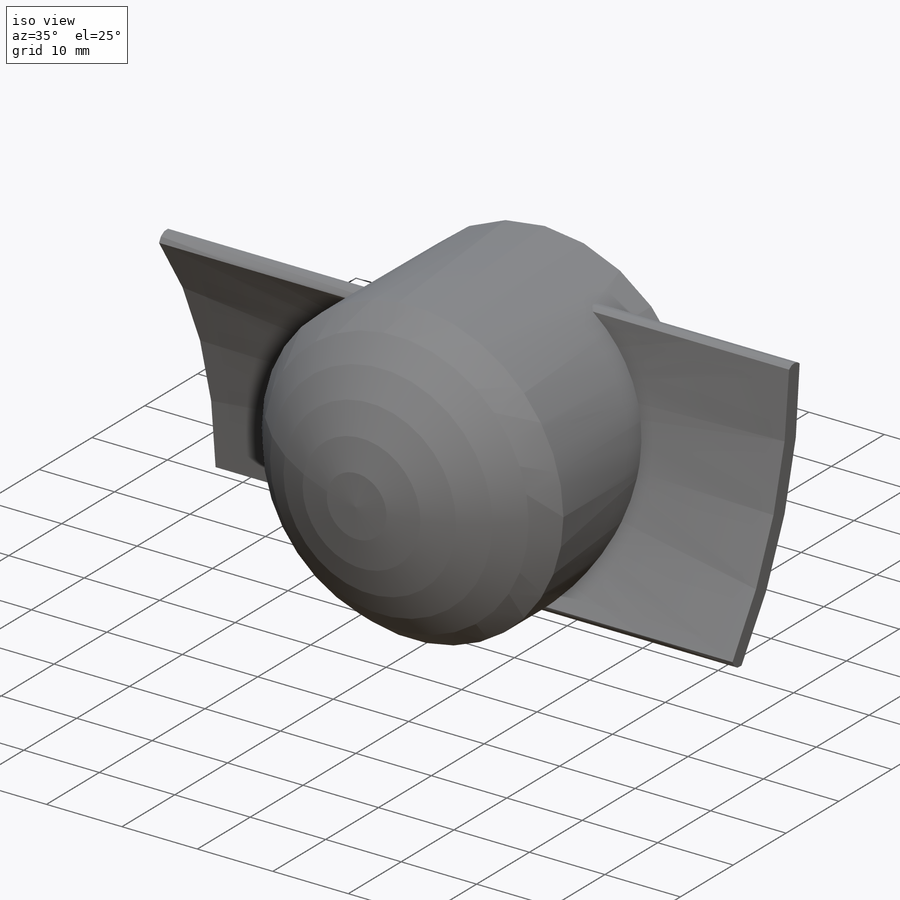
[diagram: iso view]
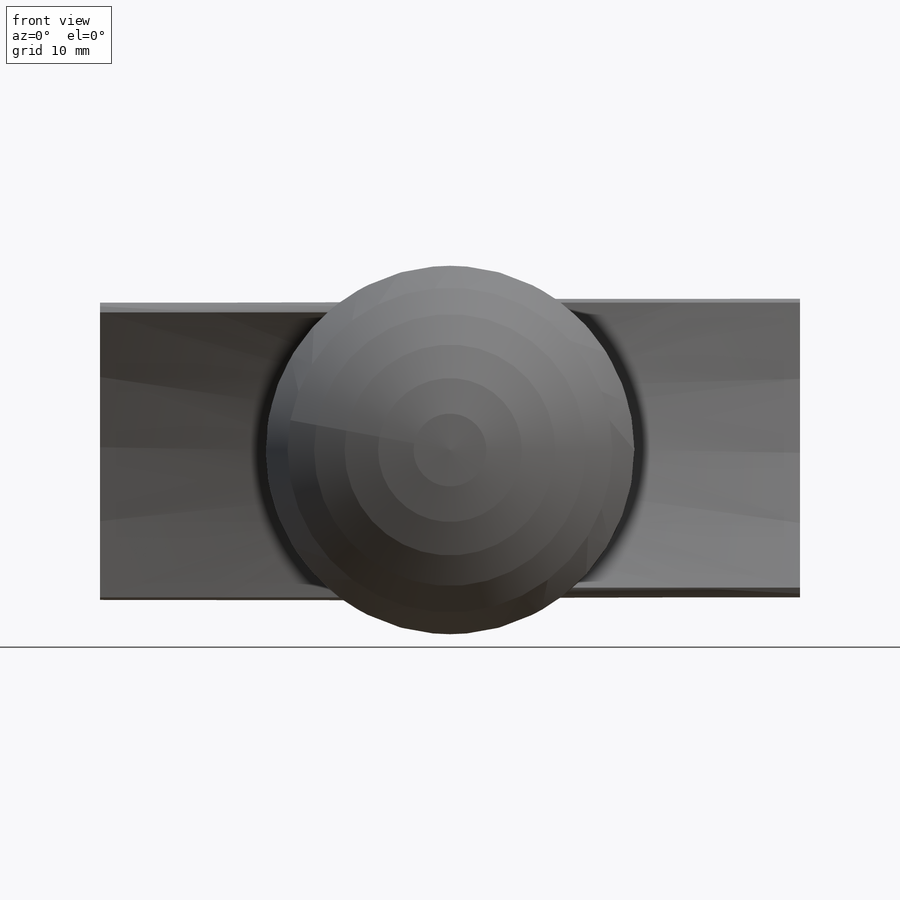
[diagram: front view]
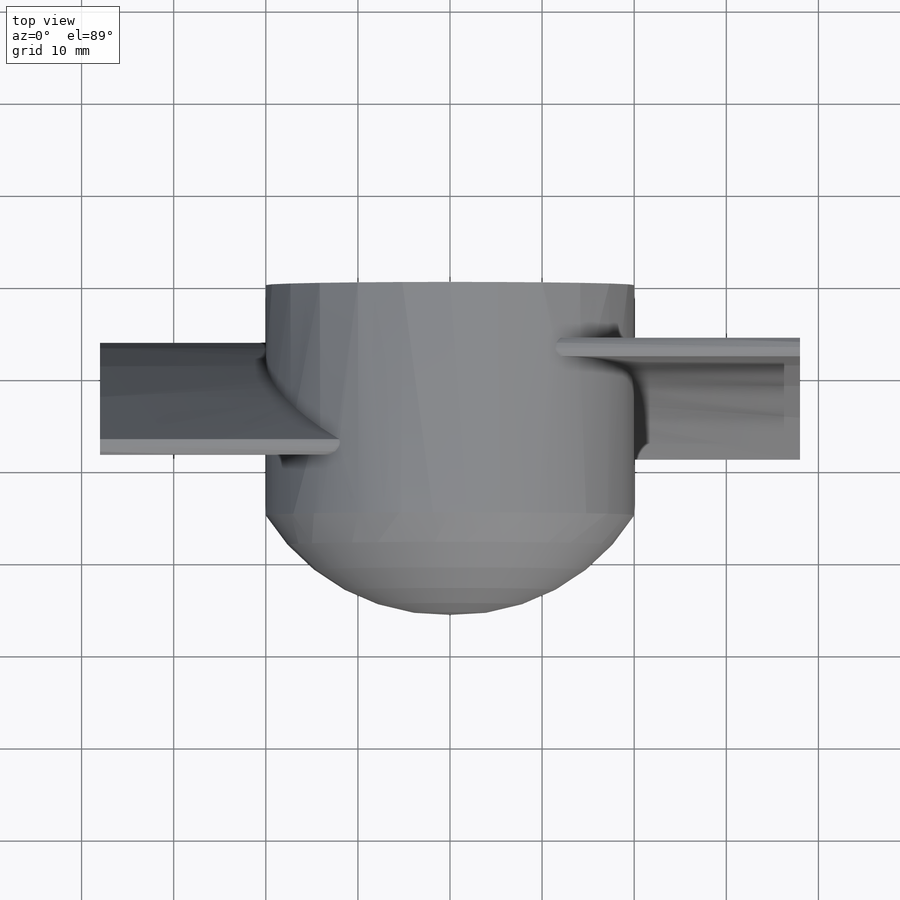
[diagram: top view]
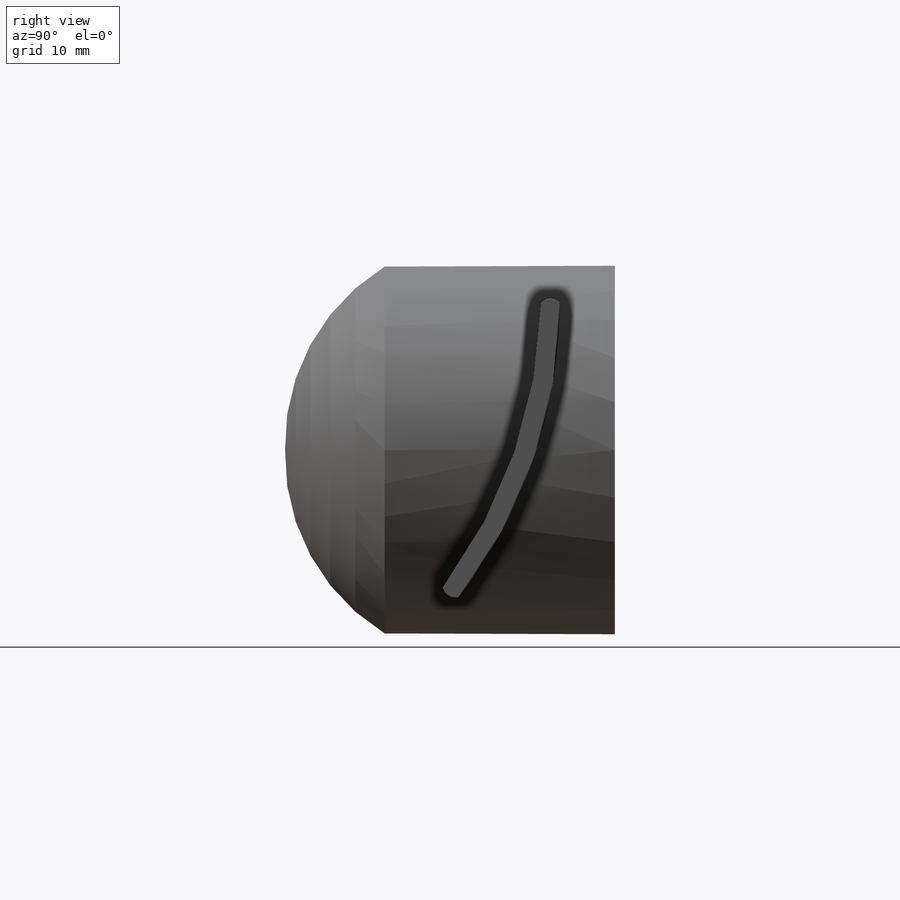
[diagram: right view]
SOLIDWORKS PART (.sldprt)
format: sldprt  version: not decoded by parser v0  size: 175,616 bytes
history: native  units: mm
features: sketch x4, extrude x3, material x1, revolve x1 (+11 scaffold rows collapsed)
feature tree (20):
  scaffold x11  (default folders/planes/origin — collapsed)
  material  "Air"
  sketch  "Sketch1"  dims[D1=~15.062791mm]
  extrude  "Extrude1"  Depth=25mm
  sketch  "Sketch2"
  revolve  "Revolve1"  Angle=360deg
  sketch  "Sketch3"  dims[c1.D1=2.0mm c1.D2=2.0mm c1.D3=6.0mm c1.D4=6.0mm c1.D5=7.0mm c1.D6=6.0mm c2.D1=2.0mm c2.D2=2.0mm c2.D3=6.0mm c2.D4=4.0mm c2.D5=4.0mm c2.D6=4.0mm c2.D7=17.0mm c2.D8=18.7mm]
  extrude  "Extrude2"  Depth=38mm
  sketch  "Sketch4"  dims[c1.D1=2.0mm c1.D2=2.0mm c2.D1=2.0mm c2.D2=2.0mm c2.D3=17.0mm c2.D4=6.0mm c2.D5=18.7mm c2.D6=4.0mm c2.D7=4.0mm c2.D8=4.0mm]
  extrude  "Extrude3"  Depth=38mm
decode coverage: 7 of 8 modeling features carry decoded parameters
note: ~ marks probable driven/reference dimensions
note: suppression state not decoded; provenance and decode notes live in map.json
